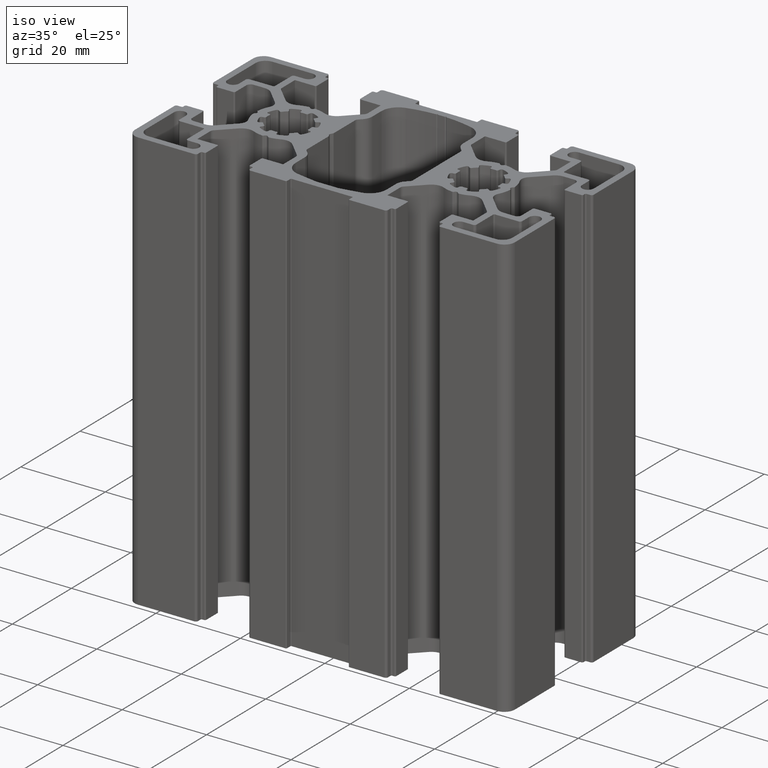
[diagram: clean part render]
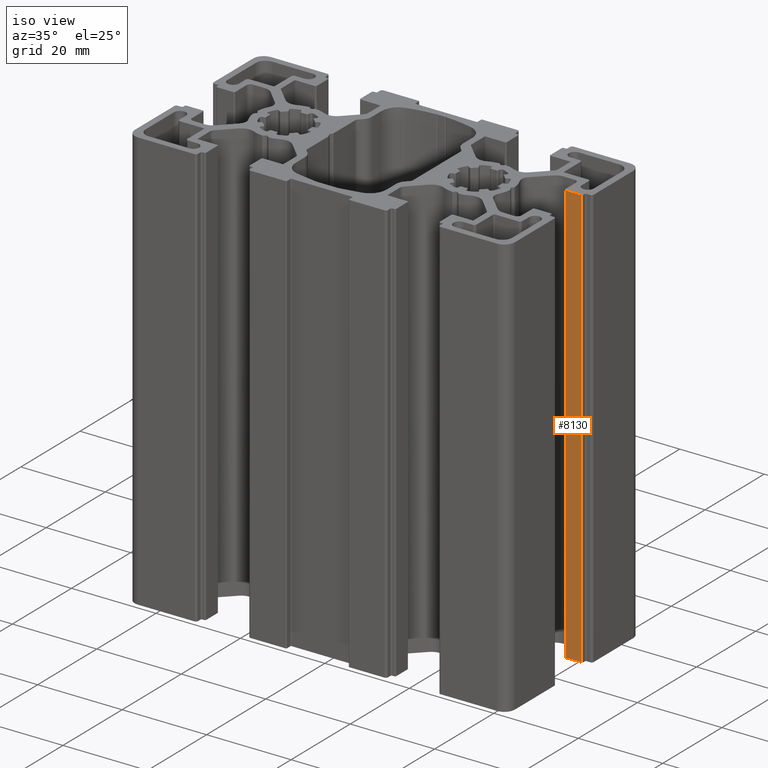
[diagram: same view with one face highlighted and labeled with its STEP entity id]
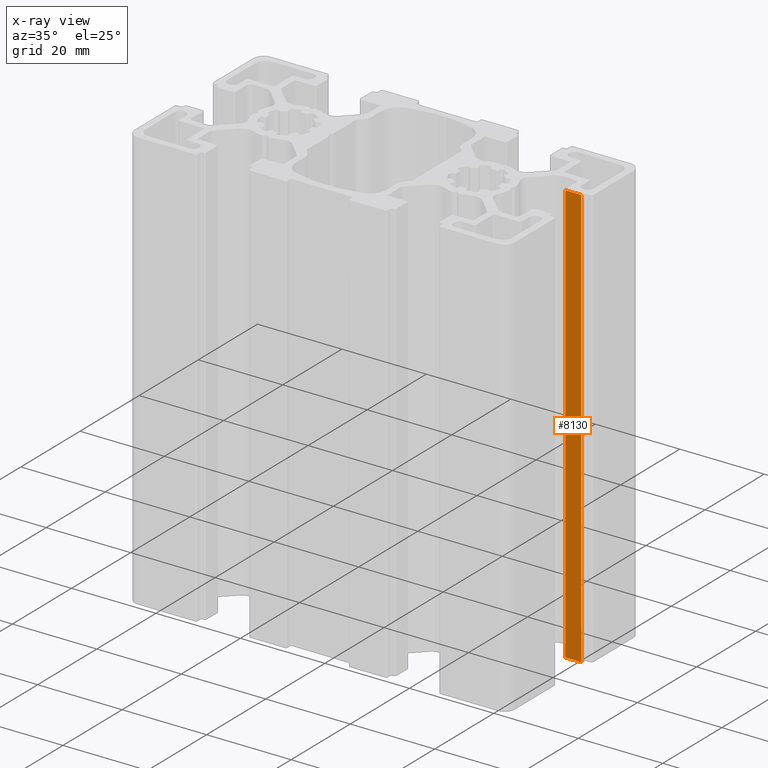
[diagram: x-ray of the same camera — body ghosted, the highlighted face saturated]
A machine part, iso view. The second image highlights one B-rep face of the part: STEP entity #8130.
The next image is the same camera in x-ray: the body ghosted, the highlighted face saturated — about 0% of this face is hidden behind the body in this view.
In plain terms, the highlighted planar face has unit normal (0, 1, 0).
Its self-contained STEP definition (entity closure, byte-faithful):
#995=FACE_OUTER_BOUND('',#1417,.T.);
#1417=EDGE_LOOP('',(#6030,#6031,#6032,#6033));
#2005=LINE('',#13094,#2751);
#2006=LINE('',#13097,#2752);
#2007=LINE('',#13099,#2753);
#2008=LINE('',#13100,#2754);
#2751=VECTOR('',#10514,100.);
#2752=VECTOR('',#10517,3.80000000000006);
#2753=VECTOR('',#10518,3.80000000000006);
#2754=VECTOR('',#10519,100.);
#3543=VERTEX_POINT('',#13088);
#3545=VERTEX_POINT('',#13092);
#3546=VERTEX_POINT('',#13096);
#3547=VERTEX_POINT('',#13098);
#4577=EDGE_CURVE('',#3545,#3543,#2005,.T.);
#4578=EDGE_CURVE('',#3543,#3546,#2006,.T.);
#4579=EDGE_CURVE('',#3547,#3545,#2007,.T.);
#4580=EDGE_CURVE('',#3547,#3546,#2008,.T.);
#6030=ORIENTED_EDGE('',*,*,#4578,.F.);
#6031=ORIENTED_EDGE('',*,*,#4577,.F.);
#6032=ORIENTED_EDGE('',*,*,#4579,.F.);
#6033=ORIENTED_EDGE('',*,*,#4580,.T.);
#7845=PLANE('',#8794);
#8130=ADVANCED_FACE('',(#995),#7845,.F.);
#8794=AXIS2_PLACEMENT_3D('',#13095,#10515,#10516);
#10514=DIRECTION('',(0.,0.,1.));
#10515=DIRECTION('center_axis',(0.,1.,0.));
#10516=DIRECTION('ref_axis',(-1.,0.,0.));
#10517=DIRECTION('',(1.,0.,0.));
#10518=DIRECTION('',(-1.,0.,0.));
#10519=DIRECTION('',(0.,0.,1.));
#13088=CARTESIAN_POINT('',(39.2999992732758,5.15000054333885,100.));
#13092=CARTESIAN_POINT('',(39.2999992732758,5.15000054333885,0.));
#13094=CARTESIAN_POINT('',(39.2999992732758,5.15000054333885,0.));
#13095=CARTESIAN_POINT('Origin',(43.0999992732758,5.15000054333885,0.));
#13096=CARTESIAN_POINT('',(43.0999992732758,5.15000054333885,100.));
#13097=CARTESIAN_POINT('',(21.5499996366379,5.15000054333885,100.));
#13098=CARTESIAN_POINT('',(43.0999992732758,5.15000054333885,0.));
#13099=CARTESIAN_POINT('',(21.5499996366379,5.15000054333885,0.));
#13100=CARTESIAN_POINT('',(43.0999992732758,5.15000054333885,0.));